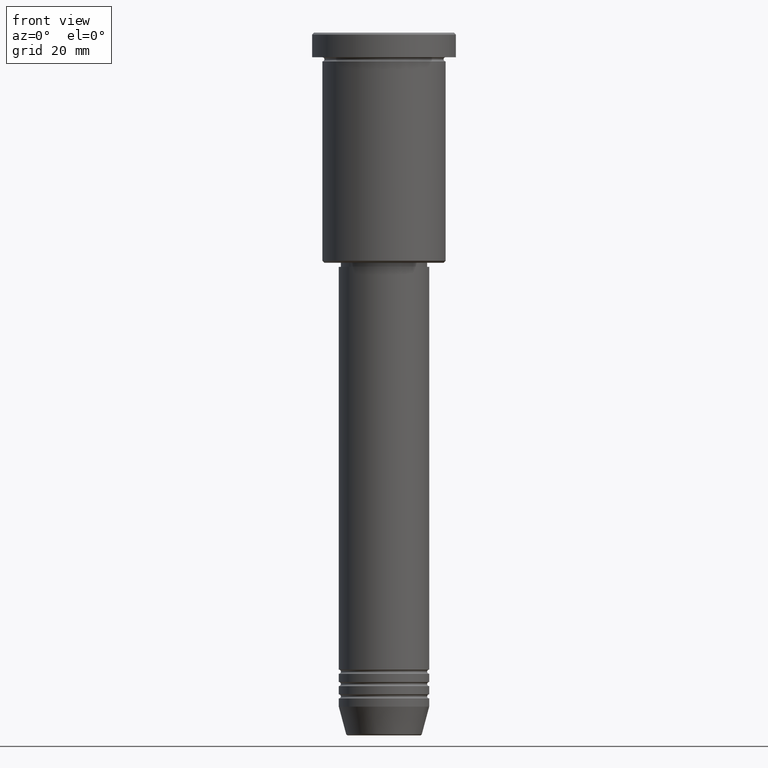
[diagram: clean part render]
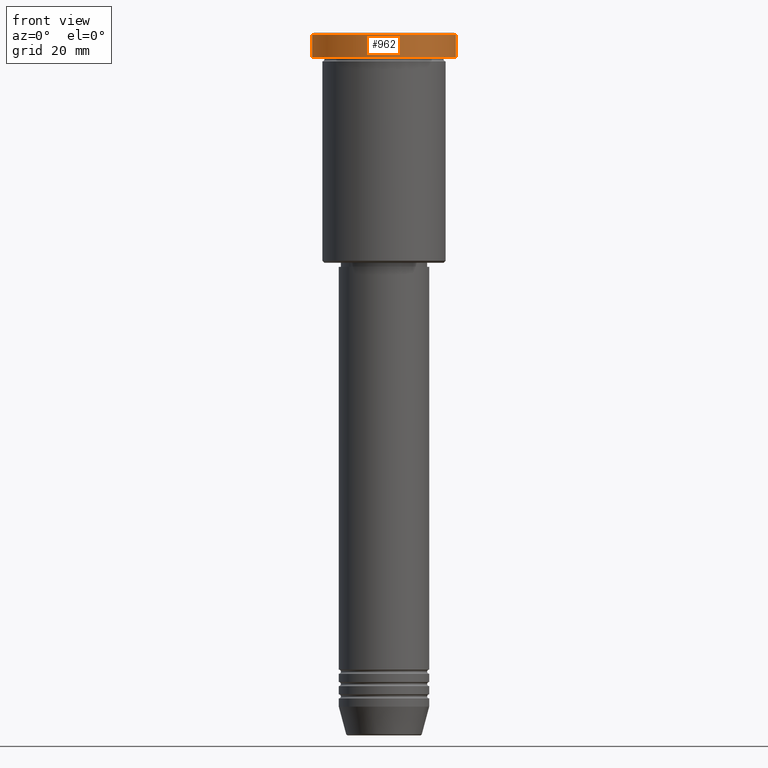
[diagram: same view with one face highlighted and labeled with its STEP entity id]
A machine part, front view. The second image highlights one B-rep face of the part: STEP entity #962.
In plain terms, the highlighted cylindrical surface (partial cylindrical patch) has radius 17.5 mm, axis along (-0, -0, 1).
Its self-contained STEP definition (entity closure, byte-faithful):
#24 = DIRECTION ( 'NONE',  ( 1.000000000000000000, 0.000000000000000000, 0.000000000000000000 ) ) ;
#61 = ORIENTED_EDGE ( 'NONE', *, *, #1078, .T. ) ;
#85 = CARTESIAN_POINT ( 'NONE',  ( 17.50000000000000000, 0.000000000000000000, -5.999999999999995559 ) ) ;
#103 = DIRECTION ( 'NONE',  ( 1.000000000000000000, 0.000000000000000000, 0.000000000000000000 ) ) ;
#119 = CARTESIAN_POINT ( 'NONE',  ( 0.000000000000000000, 0.000000000000000000, -0.4999999999999727995 ) ) ;
#141 = VERTEX_POINT ( 'NONE', #85 ) ;
#174 = DIRECTION ( 'NONE',  ( -0.000000000000000000, -0.000000000000000000, 1.000000000000000000 ) ) ;
#230 = AXIS2_PLACEMENT_3D ( 'NONE', #897, #174, #351 ) ;
#323 = VERTEX_POINT ( 'NONE', #684 ) ;
#344 = LINE ( 'NONE', #810, #349 ) ;
#349 = VECTOR ( 'NONE', #1163, 1000.000000000000000 ) ;
#351 = DIRECTION ( 'NONE',  ( 1.000000000000000000, 0.000000000000000000, 0.000000000000000000 ) ) ;
#375 = CARTESIAN_POINT ( 'NONE',  ( -17.50000000000000000, 2.143131898507868248E-15, -5.999999999999995559 ) ) ;
#382 = CIRCLE ( 'NONE', #511, 17.50000000000000000 ) ;
#484 = EDGE_CURVE ( 'NONE', #851, #141, #749, .T. ) ;
#511 = AXIS2_PLACEMENT_3D ( 'NONE', #119, #744, #24 ) ;
#523 = ORIENTED_EDGE ( 'NONE', *, *, #484, .T. ) ;
#557 = DIRECTION ( 'NONE',  ( -0.000000000000000000, -0.000000000000000000, 1.000000000000000000 ) ) ;
#560 = CARTESIAN_POINT ( 'NONE',  ( 0.000000000000000000, 0.000000000000000000, -5.999999999999995559 ) ) ;
#623 = VERTEX_POINT ( 'NONE', #1055 ) ;
#653 = FACE_OUTER_BOUND ( 'NONE', #956, .T. ) ;
#684 = CARTESIAN_POINT ( 'NONE',  ( 17.50000000000000000, 0.000000000000000000, -0.4999999999999727995 ) ) ;
#699 = CYLINDRICAL_SURFACE ( 'NONE', #230, 17.50000000000000000 ) ;
#731 = AXIS2_PLACEMENT_3D ( 'NONE', #560, #927, #103 ) ;
#744 = DIRECTION ( 'NONE',  ( 0.000000000000000000, 0.000000000000000000, -1.000000000000000000 ) ) ;
#749 = CIRCLE ( 'NONE', #731, 17.50000000000000000 ) ;
#750 = VECTOR ( 'NONE', #557, 1000.000000000000000 ) ;
#765 = LINE ( 'NONE', #835, #750 ) ;
#810 = CARTESIAN_POINT ( 'NONE',  ( 17.50000000000000000, 0.000000000000000000, 0.000000000000000000 ) ) ;
#835 = CARTESIAN_POINT ( 'NONE',  ( -17.50000000000000000, 2.143131898507868248E-15, 0.000000000000000000 ) ) ;
#851 = VERTEX_POINT ( 'NONE', #375 ) ;
#897 = CARTESIAN_POINT ( 'NONE',  ( 0.000000000000000000, 0.000000000000000000, 0.000000000000000000 ) ) ;
#927 = DIRECTION ( 'NONE',  ( -0.000000000000000000, -0.000000000000000000, 1.000000000000000000 ) ) ;
#956 = EDGE_LOOP ( 'NONE', ( #1131, #523, #960, #61 ) ) ;
#960 = ORIENTED_EDGE ( 'NONE', *, *, #1004, .T. ) ;
#962 = ADVANCED_FACE ( 'NONE', ( #653 ), #699, .T. ) ;
#1004 = EDGE_CURVE ( 'NONE', #141, #323, #344, .T. ) ;
#1055 = CARTESIAN_POINT ( 'NONE',  ( -17.50000000000000000, 2.143131898507868248E-15, -0.4999999999999727995 ) ) ;
#1078 = EDGE_CURVE ( 'NONE', #323, #623, #382, .T. ) ;
#1088 = EDGE_CURVE ( 'NONE', #851, #623, #765, .T. ) ;
#1131 = ORIENTED_EDGE ( 'NONE', *, *, #1088, .F. ) ;
#1163 = DIRECTION ( 'NONE',  ( -0.000000000000000000, -0.000000000000000000, 1.000000000000000000 ) ) ;